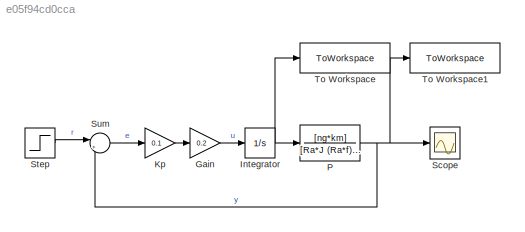
MODEL slx_e05f94cd0cca
KIND model
CONFIG AbsTol = auto
CONFIG EnableMultiTasking = off
CONFIG FixedStep = auto
CONFIG MaxStep = auto
CONFIG MinStep = auto
CONFIG RelTol = 1e-3
CONFIG SampleTimeConstraint = Unconstrained
CONFIG SolverName = VariableStepAuto
CONFIG StartFcn = run parameters.m;
CONFIG StartTime = 0.0
CONFIG StopTime = 45
BLOCK [Gain] Gain
  Commented = through
  Gain = 0.2
BLOCK [Integrator] Integrator
  Commented = through
BLOCK [Gain] Kp
  Gain = 0.1
BLOCK [TransferFcn] P
  Denominator = [Ra*J  (Ra*f)+(ng^2*km^2) 0]
  Numerator = [ng*km]
BLOCK [Scope] Scope
  ActiveDisplayYMaximum = 50.247214387096264
  ActiveDisplayYMinimum = -4.5326215359287865
  Floating = off
  GraphicalSettings = {"AxesScalingProperties":{"AlignXAxis":"Center","AlignYAxis":"Center","AutoScaleXAxisLimits":false,"AxesScaling":"Manual","AxesScalingNumUpdates":10,"ExpandOnly":true,"ScaleAxesLimitsAtStop":false,"XAxisDataRange":100,"YAxisDataRange":80},"DisplayProperties":{"ColorOrder":["auto","auto","auto","auto","auto","auto","auto","auto","auto","auto","auto","auto","auto","auto","auto","auto","auto","auto",...<+2302ch>
  MultipleDisplayCache = [{"MaxYLimMag":41.859319796513262,"MaxYLimReal":50.247214387096264,"MinYLimMag":0,"MinYLimReal":-4.5326215359287865,"PlotAsMagnitudePhase":false,"ShowGrid":true,"ShowLegend":false,"Title":"%<SignalLabel>","YLabel":""}]
  NumInputPorts = 1
  SampleTime = 0.01
  ScopeFrameLocation = window
  WasSavedAsWebScope = on
  WindowPosition = [1.000000,414.000000,560.000000,420.000000,]
BLOCK [Step] Step
  After = 30
  SampleTime = 0
BLOCK [Sum] Sum
  Inputs = |+-
BLOCK [ToWorkspace] To Workspace
  MaxDataPoints = inf
  SampleTime = -1
  SaveFormat = Timeseries
  VariableName = u_sim
BLOCK [ToWorkspace] To Workspace1
  FixptAsFi = on
  MaxDataPoints = inf
  SampleTime = -1
  SaveFormat = Timeseries
  VariableName = y_sim
LINE Gain:1 -> Integrator:1
NET Integrator:1 -> P:1, To Workspace:1
LINE Kp:1 -> Gain:1
NET P:1 -> Scope:1, Sum:2, To Workspace1:1
LINE Step:1 -> Sum:1
LINE Sum:1 -> Kp:1
note: NET lines group one-source signal fan-out (src -> all destinations, sorted); 1:1 wires keep LINE
